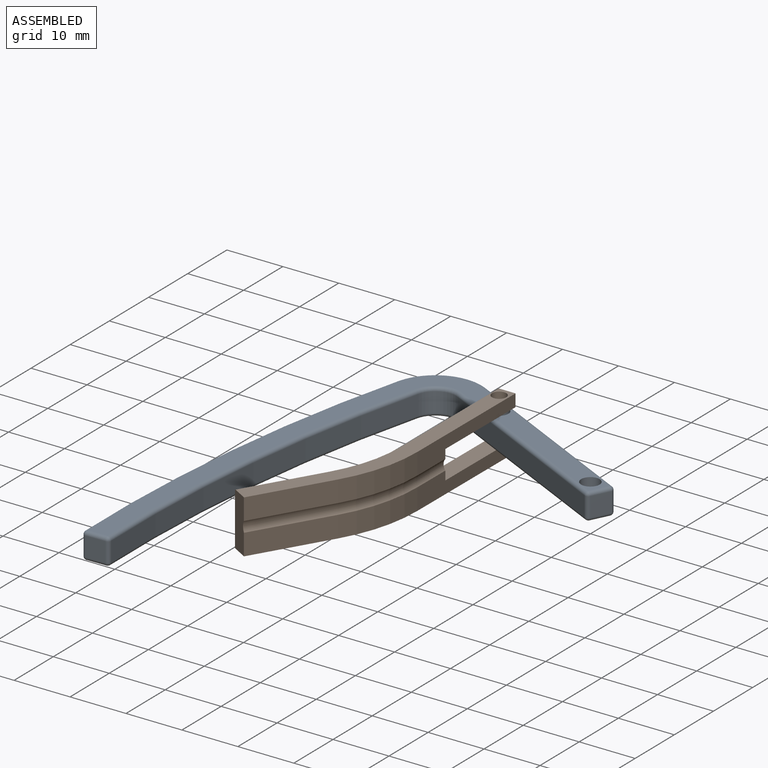
[diagram: assembled view]
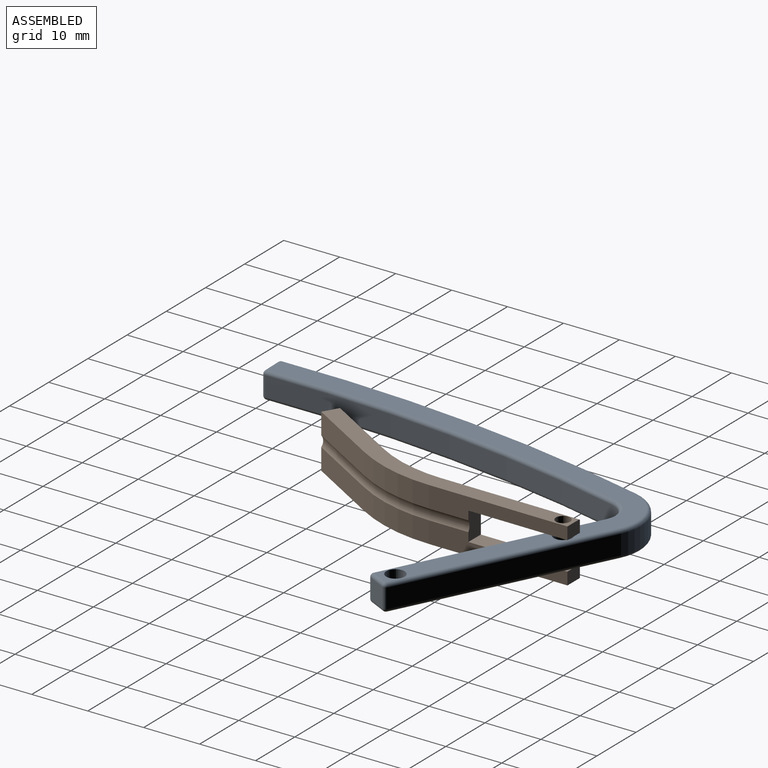
[diagram: assembled view, second angle]
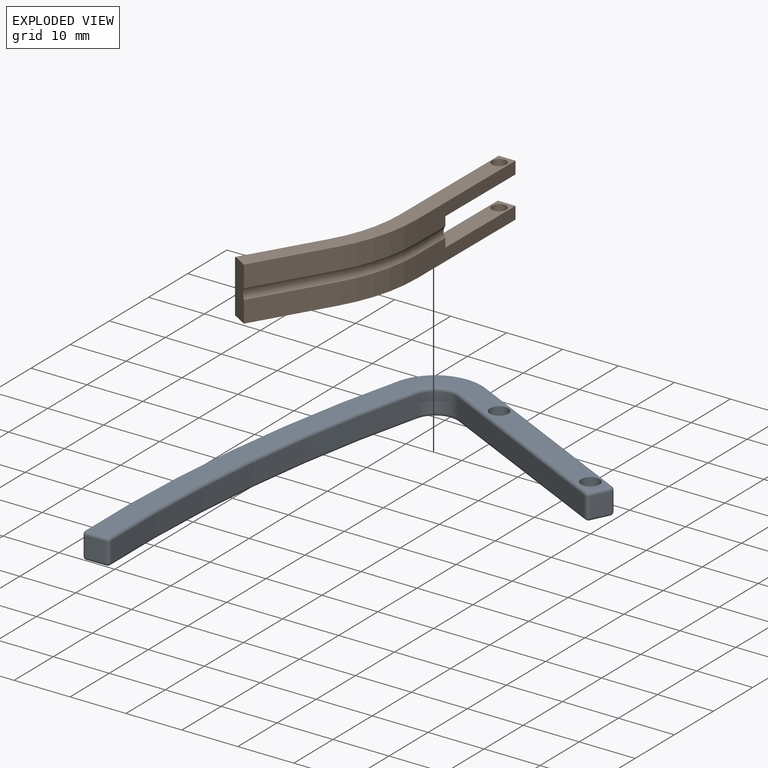
[diagram: exploded view]
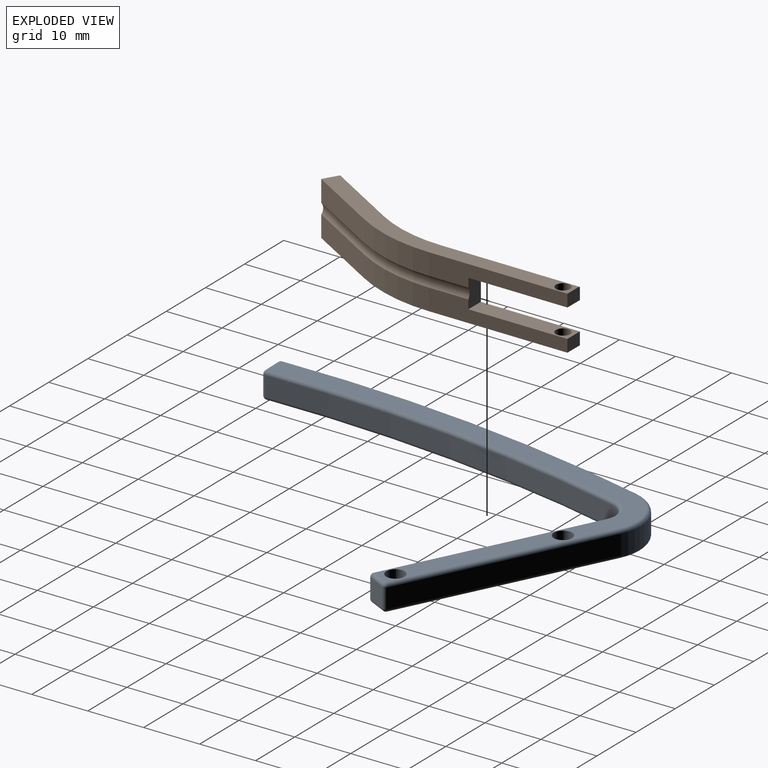
[diagram: exploded view, second angle]
ASSEMBLY  parts=2 mates=2
PART A: 40 faces, bbox 77.8x53x4.8 mm
  f0: cylinder r=3.72mm len=4.96mm, axis (0,0,-1), area 23.1mm2, adj f1,f9,f22,f37
  f1: plane 36.5x13.29mm, normal (0.94,-0.34,0), area 135.2mm2, adj f0,f27,f35,f39
  f2: plane 3.48x3.27mm, normal (0.34,0.94,0), area 12.1mm2, adj f28,f29,f35,f36
  f3: plane 36.5x13.29mm, normal (-0.94,0.34,0), area 135.2mm2, adj f4,f18,f29,f30
  f4: cylinder r=8.47mm len=11.29mm, axis (0,0,-1), area 52.5mm2, adj f3,f5,f14,f24
  f5: cylinder r=254mm len=69.22mm, axis (0,0,-1), area 241.6mm2, adj f4,f12,f15,f19
  f6: plane 3.48x3.45mm, normal (0.99,0.14,0), area 12.1mm2, adj f15,f16,f25,f26
  f7: cylinder r=1.65mm len=4.75mm, axis (0,0,-1), area 49.3mm2, adj f10,f11
  f8: cylinder r=1.65mm len=4.75mm, axis (0,0,-1), area 49.3mm2, adj f10,f11
  f9: cylinder r=249.25mm len=67.92mm, axis (0,0,-1), area 237.1mm2, adj f0,f17,f26,f34
  f10: plane 75.8x49.35mm, normal (0,0,1), area 395.2mm2, adj f7,f8,f12,f14,f16,f17,f18,f22
  f11: plane 75.8x49.35mm, normal (0,0,-1), area 395.2mm2, adj f7,f8,f19,f24,f25,f30,f34,f36
  f12: torus R=253.37mm, axis (0,0,1), area 69.2mm2, adj f5,f10,f13,f14
  f13: sphere r=0.64mm, area 0.6mm2, adj f12,f15,f16
  f14: torus R=7.84mm, axis (0,0,1), area 14.6mm2, adj f4,f10,f12,f18
  f15: cylinder r=0.64mm len=3.48mm, axis (0,0,-1), area 3.5mm2, adj f5,f6,f13,f20
  f16: cylinder r=0.64mm len=3.53mm, axis (0.14,-0.99,0), area 3.5mm2, adj f6,f10,f13,f21
  f17: torus R=249.89mm, axis (0,0,1), area 68mm2, adj f9,f10,f21,f22
  f18: cylinder r=0.64mm len=36.72mm, axis (0.34,0.94,0), area 38.7mm2, adj f3,f10,f14,f23
  f19: torus R=253.37mm, axis (0,0,1), area 69.2mm2, adj f5,f11,f20,f24
  f20: sphere r=0.64mm, area 0.6mm2, adj f15,f19,f25
  f21: sphere r=0.64mm, area 0.6mm2, adj f16,f17,f26
  f22: torus R=4.36mm, axis (0,0,1), area 7mm2, adj f0,f10,f17,f27
  f23: sphere r=0.64mm, area 0.6mm2, adj f18,f28,f29
  f24: torus R=7.84mm, axis (0,0,1), area 14.6mm2, adj f4,f11,f19,f30
  f25: cylinder r=0.64mm len=3.53mm, axis (-0.14,0.99,0), area 3.5mm2, adj f6,f11,f20,f31
  f26: cylinder r=0.64mm len=3.48mm, axis (0,0,-1), area 3.5mm2, adj f6,f9,f21,f31
  f27: cylinder r=0.64mm len=36.72mm, axis (-0.34,-0.94,0), area 38.7mm2, adj f1,f10,f22,f32
  f28: cylinder r=0.64mm len=3.49mm, axis (0.94,-0.34,0), area 3.5mm2, adj f2,f10,f23,f32
  f29: cylinder r=0.64mm len=3.48mm, axis (0,0,-1), area 3.5mm2, adj f2,f3,f23,f33
  f30: cylinder r=0.64mm len=36.72mm, axis (-0.34,-0.94,0), area 38.7mm2, adj f3,f11,f24,f33
  f31: sphere r=0.64mm, area 0.6mm2, adj f25,f26,f34
  f32: sphere r=0.64mm, area 0.6mm2, adj f27,f28,f35
  f33: sphere r=0.64mm, area 0.6mm2, adj f29,f30,f36
  f34: torus R=249.89mm, axis (0,0,1), area 68mm2, adj f9,f11,f31,f37
  f35: cylinder r=0.64mm len=3.48mm, axis (0,0,1), area 3.5mm2, adj f1,f2,f32,f38
  f36: cylinder r=0.64mm len=3.49mm, axis (-0.94,0.34,0), area 3.5mm2, adj f2,f11,f33,f38
  f37: torus R=4.36mm, axis (0,0,1), area 7mm2, adj f0,f11,f34,f39
  f38: sphere r=0.64mm, area 0.6mm2, adj f35,f36,f39
  f39: cylinder r=0.64mm len=36.72mm, axis (0.34,0.94,0), area 38.7mm2, adj f1,f11,f37,f38
PART B: 25 faces, bbox 16.9x52.4x9.5 mm
  f0: plane 3.18x2.22mm, normal (0,-1,0), area 7mm2, adj f5,f11,f12,f17,f22
  f1: plane 13.1x7.68mm, normal (-0.86,0.51,0), area 57.9mm2, adj f8,f10,f13,f16
  f2: cylinder r=28.57mm len=14.45mm, axis (0,0,-1), area 57.7mm2, adj f9,f11,f12,f15
  f3: plane 24.85x3.81mm, normal (-1,0,0), area 66.5mm2, adj f4,f10,f13,f14,f18,f19
  f4: plane 3.18x2.22mm, normal (0,-1,0), area 7.1mm2, adj f3,f5,f13,f18
  f5: plane 24.85x9.27mm, normal (1,0,0), area 140.1mm2, adj f0,f4,f6,f13,f17,f18,f19,f22
  f6: cylinder r=25.4mm len=12.85mm, axis (0,0,-1), area 124.9mm2, adj f5,f7,f13,f23
  f7: plane 13.1x9.27mm, normal (0.86,-0.51,0), area 140.8mm2, adj f6,f8,f13,f24
  f8: plane 9.53x2.74mm, normal (0.51,0.86,0), area 29.8mm2, adj f1,f7,f9,f12,f13,f16,f24
  f9: plane 13.1x7.68mm, normal (-0.86,0.51,0), area 57.9mm2, adj f2,f8,f12,f16
  f10: cylinder r=28.57mm len=14.45mm, axis (0,0,-1), area 57.7mm2, adj f1,f3,f13,f15
  f11: plane 24.85x3.81mm, normal (-1,0,0), area 66.5mm2, adj f0,f2,f12,f14,f17,f19
  f12: plane 52.41x14.13mm, normal (0,0,1), area 153.9mm2, adj f0,f2,f8,f9,f11,f21,f22,f23
  f13: plane 52.41x14.35mm, normal (0,0,-1), area 167.5mm2, adj f1,f3,f4,f5,f6,f7,f8,f10
  f14: cylinder r=1.59mm len=7.07mm, axis (0,1,0), area 14.4mm2, adj f3,f11,f15,f19
  f15: torus R=29.84mm, axis (0,0,-1), area 30.7mm2, adj f2,f10,f14,f16
  f16: cylinder r=1.59mm len=13.26mm, axis (0.51,0.86,0), area 31mm2, adj f1,f8,f9,f15
  f17: plane 17.78x3.18mm, normal (0,0,-1), area 51.4mm2, adj f0,f5,f11,f19,f21
  f18: plane 17.78x3.18mm, normal (0,0,1), area 51.4mm2, adj f3,f4,f5,f19,f20
  f19: plane 5.08x3.18mm, normal (0,-1,0), area 15.7mm2, adj f3,f5,f11,f14,f17,f18
  f20: cylinder r=1.27mm len=2.54mm, axis (0,0,-1), area 17.7mm2, adj f13,f18
  f21: cylinder r=1.27mm len=2.54mm, axis (0,0,-1), area 17.7mm2, adj f12,f17
  f22: cylinder r=0.25mm len=24.85mm, axis (0,-1,0), area 9.9mm2, adj f0,f5,f12,f23
  f23: torus R=25.65mm, axis (0,0,1), area 5.4mm2, adj f6,f12,f22,f24
  f24: cylinder r=0.25mm len=13.23mm, axis (-0.51,-0.86,0), area 6.1mm2, adj f7,f8,f12,f23
PLACE A rot(axis=(0,0,-1),96.4deg) t=(-51.26,-56.61,-5.82)mm
PLACE B rot(axis=(0,0,1),179.7deg) t=(-26.6,14.35,-3.28)mm
MATE cylindrical A.f8 <-> B.f20  axis (0,0,-1) through (-25.02,12.44,-5.82)mm
MATE planar A.f11 <-> B.f18  axis (0,0,-1) through (-36.42,-9.33,-5.82)mm
